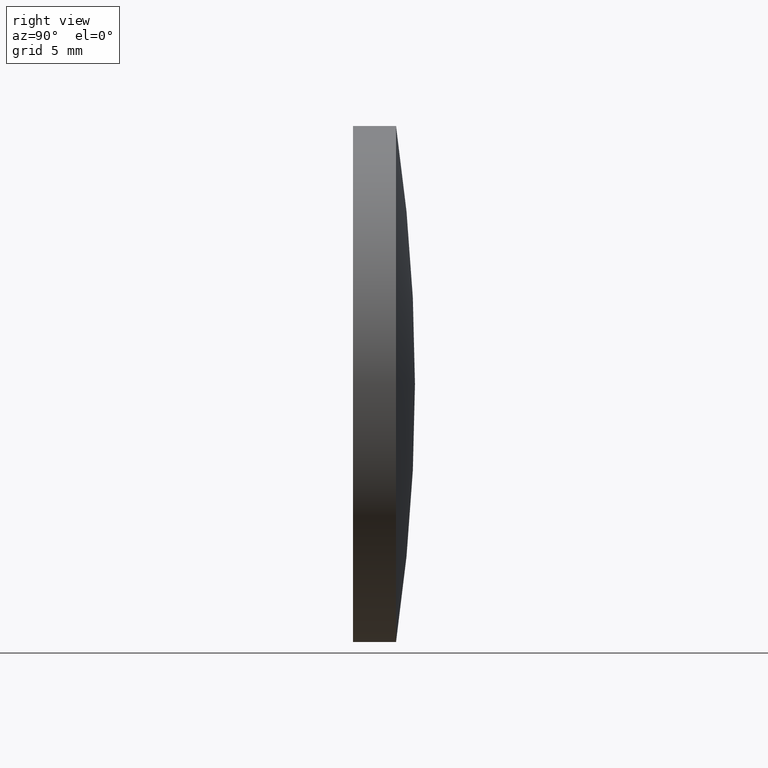
[diagram: clean part render]
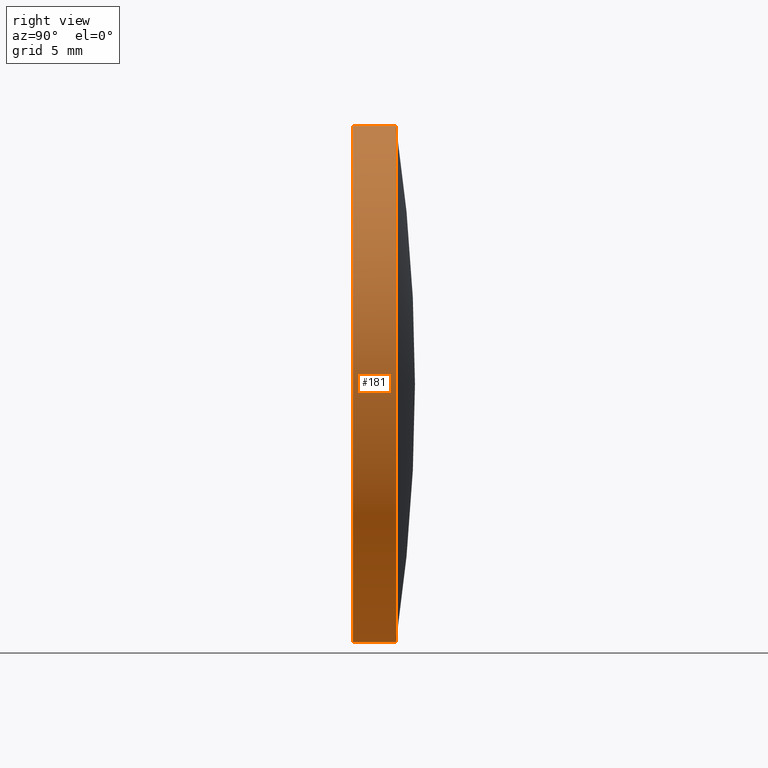
[diagram: same view with one face highlighted and labeled with its STEP entity id]
A machine part, right view. The second image highlights one B-rep face of the part: STEP entity #181.
In plain terms, the highlighted cylindrical surface (partial cylindrical patch) has radius 15 mm, axis along (-0, 1, -0).
Its self-contained STEP definition (entity closure, byte-faithful):
#2 = ORIENTED_EDGE ( 'NONE', *, *, #70, .T. ) ;
#3 = AXIS2_PLACEMENT_3D ( 'NONE', #160, #54, #192 ) ;
#9 = VECTOR ( 'NONE', #142, 1000.000000000000000 ) ;
#11 = CYLINDRICAL_SURFACE ( 'NONE', #59, 15.00000000000000000 ) ;
#18 = DIRECTION ( 'NONE',  ( 0.000000000000000000, 0.000000000000000000, 1.000000000000000000 ) ) ;
#30 = EDGE_CURVE ( 'NONE', #94, #61, #67, .T. ) ;
#31 = DIRECTION ( 'NONE',  ( -0.000000000000000000, 1.000000000000000000, -0.000000000000000000 ) ) ;
#35 = LINE ( 'NONE', #111, #185 ) ;
#41 = FACE_OUTER_BOUND ( 'NONE', #47, .T. ) ;
#47 = EDGE_LOOP ( 'NONE', ( #73, #2, #78, #152 ) ) ;
#51 = CARTESIAN_POINT ( 'NONE',  ( 1.836970198721033533E-15, 2.500000000000000444, -15.00000000000002842 ) ) ;
#52 = CARTESIAN_POINT ( 'NONE',  ( 0.000000000000000000, 3.600000000000000533, 0.000000000000000000 ) ) ;
#54 = DIRECTION ( 'NONE',  ( -0.000000000000000000, 1.000000000000000000, -0.000000000000000000 ) ) ;
#59 = AXIS2_PLACEMENT_3D ( 'NONE', #52, #157, #18 ) ;
#61 = VERTEX_POINT ( 'NONE', #51 ) ;
#67 = CIRCLE ( 'NONE', #155, 15.00000000000000000 ) ;
#70 = EDGE_CURVE ( 'NONE', #137, #61, #188, .T. ) ;
#73 = ORIENTED_EDGE ( 'NONE', *, *, #122, .T. ) ;
#78 = ORIENTED_EDGE ( 'NONE', *, *, #30, .F. ) ;
#88 = EDGE_CURVE ( 'NONE', #126, #94, #35, .T. ) ;
#94 = VERTEX_POINT ( 'NONE', #127 ) ;
#97 = CARTESIAN_POINT ( 'NONE',  ( 1.836970198721029589E-15, -1.734723475976807094E-15, -15.00000000000000000 ) ) ;
#100 = CARTESIAN_POINT ( 'NONE',  ( 1.836970198721029589E-15, 3.600000000000000533, -15.00000000000000000 ) ) ;
#111 = CARTESIAN_POINT ( 'NONE',  ( 0.000000000000000000, 3.600000000000000533, 15.00000000000000000 ) ) ;
#115 = DIRECTION ( 'NONE',  ( 0.000000000000000000, 0.000000000000000000, 1.000000000000000000 ) ) ;
#117 = CARTESIAN_POINT ( 'NONE',  ( 0.000000000000000000, -1.734723475976807094E-15, 15.00000000000000000 ) ) ;
#122 = EDGE_CURVE ( 'NONE', #126, #137, #148, .T. ) ;
#126 = VERTEX_POINT ( 'NONE', #117 ) ;
#127 = CARTESIAN_POINT ( 'NONE',  ( 0.000000000000000000, 2.500000000000000444, 15.00000000000002842 ) ) ;
#129 = DIRECTION ( 'NONE',  ( -0.000000000000000000, 1.000000000000000000, -0.000000000000000000 ) ) ;
#137 = VERTEX_POINT ( 'NONE', #97 ) ;
#142 = DIRECTION ( 'NONE',  ( -0.000000000000000000, 1.000000000000000000, -0.000000000000000000 ) ) ;
#148 = CIRCLE ( 'NONE', #3, 15.00000000000000000 ) ;
#152 = ORIENTED_EDGE ( 'NONE', *, *, #88, .F. ) ;
#155 = AXIS2_PLACEMENT_3D ( 'NONE', #170, #31, #115 ) ;
#157 = DIRECTION ( 'NONE',  ( -0.000000000000000000, 1.000000000000000000, -0.000000000000000000 ) ) ;
#160 = CARTESIAN_POINT ( 'NONE',  ( 0.000000000000000000, -1.734723475976807094E-15, 0.000000000000000000 ) ) ;
#170 = CARTESIAN_POINT ( 'NONE',  ( 0.000000000000000000, 2.499999999999998224, 0.000000000000000000 ) ) ;
#181 = ADVANCED_FACE ( 'NONE', ( #41 ), #11, .T. ) ;
#185 = VECTOR ( 'NONE', #129, 1000.000000000000000 ) ;
#188 = LINE ( 'NONE', #100, #9 ) ;
#192 = DIRECTION ( 'NONE',  ( 0.000000000000000000, 0.000000000000000000, 1.000000000000000000 ) ) ;